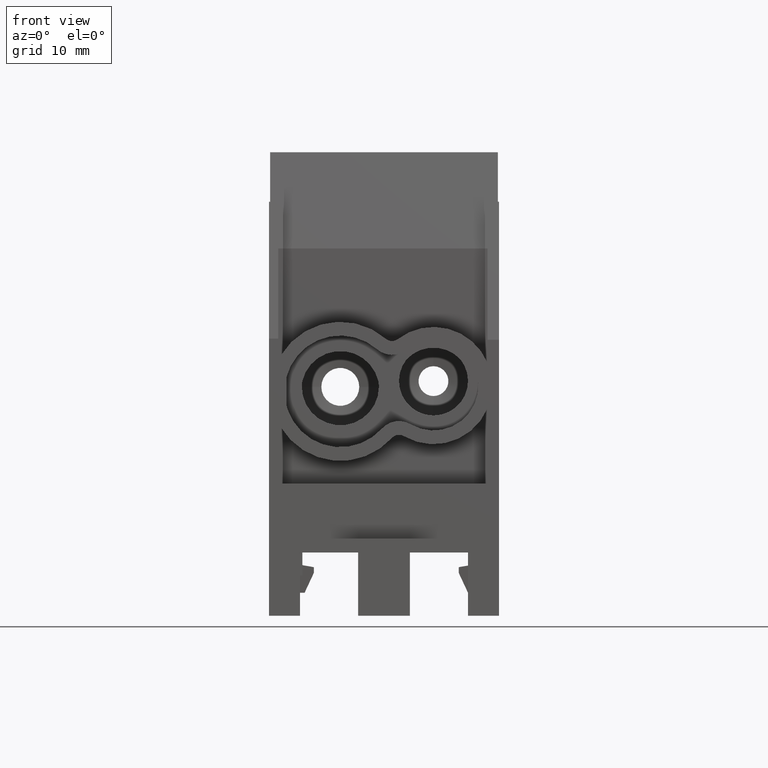
[diagram: clean part render]
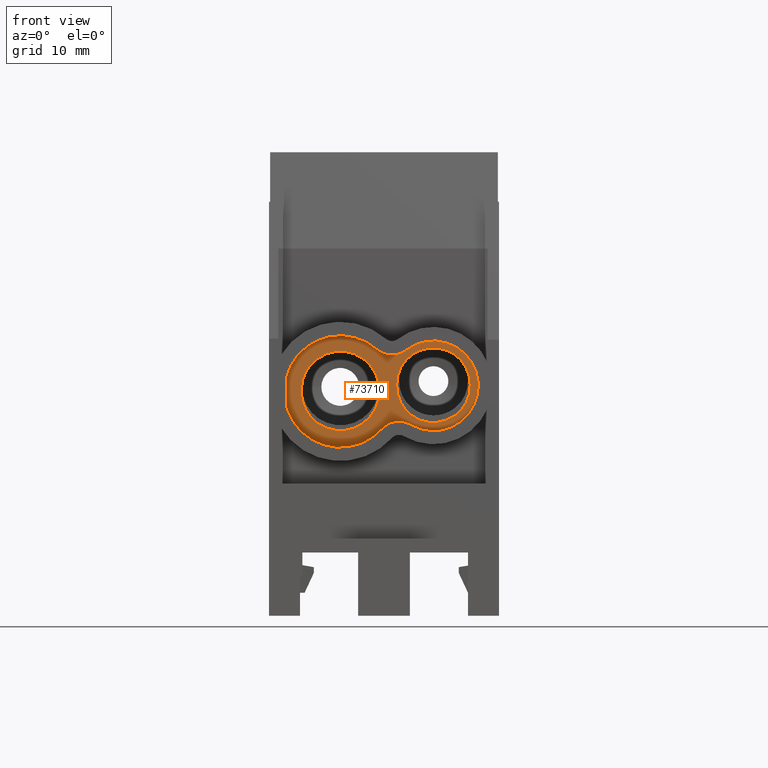
[diagram: same view with one face highlighted and labeled with its STEP entity id]
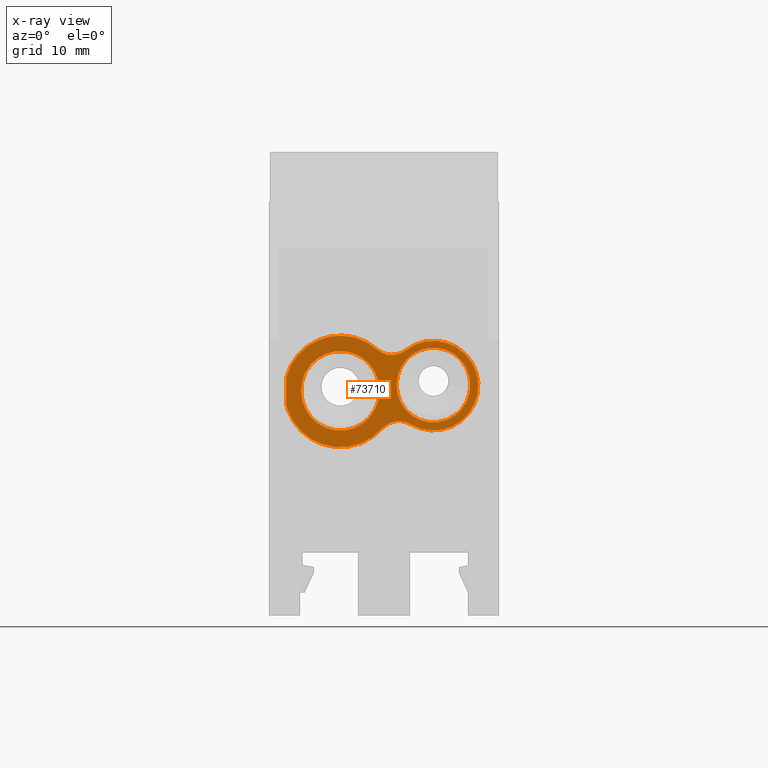
[diagram: x-ray of the same camera — body ghosted, the highlighted face saturated]
A machine part, front view. The second image highlights one B-rep face of the part: STEP entity #73710.
The next image is the same camera in x-ray: the body ghosted, the highlighted face saturated — about 0% of this face is hidden behind the body in this view.
In plain terms, the highlighted planar face has unit normal (0, 1, 0).
Its self-contained STEP definition (entity closure, byte-faithful):
#14240=CARTESIAN_POINT('',(9.9,17.15,-9.44535933870499));
#14250=DIRECTION('',(-3.24619032168768E-32,-1.,3.03396758775072E-16));
#14260=DIRECTION('',(-5.55111512312577E-17,-3.03396758775072E-16,-1.));
#14270=AXIS2_PLACEMENT_3D('',#14240,#14250,#14260);
#14280=PLANE('',#14270);
#36290=CARTESIAN_POINT('',(3.80000000000001,17.15,-21.745359338705));
#36300=DIRECTION('',(-2.77555756156289E-16,-1.,5.80952514931361E-16));
#36310=DIRECTION('',(5.55111512312577E-17,5.80952514931361E-16,1.));
#36320=AXIS2_PLACEMENT_3D('',#36290,#36300,#36310);
#36330=CIRCLE('',#36320,3.4);
#36340=CARTESIAN_POINT('',(0.400000000000007,17.15,-21.745359338705));
#36350=VERTEX_POINT('',#36340);
#36360=CARTESIAN_POINT('',(7.20000000000001,17.15,-21.745359338705));
#36370=VERTEX_POINT('',#36360);
#36380=EDGE_CURVE('',#36350,#36370,#36330,.T.);
#47840=CARTESIAN_POINT('',(-7.49843711834388,17.15,-21.145359338705));
#47850=VERTEX_POINT('',#47840);
#47880=CARTESIAN_POINT('',(-4.29999999999999,17.15,-21.245359338705));
#47890=DIRECTION('',(-2.77555756156289E-16,-1.,5.80952514931361E-16));
#47900=DIRECTION('',(5.55111512312577E-17,5.80952514931361E-16,1.));
#47910=AXIS2_PLACEMENT_3D('',#47880,#47890,#47900);
#47920=CIRCLE('',#47910,3.2);
#47930=CARTESIAN_POINT('',(-1.10156288165609,17.15,-21.145359338705));
#47940=VERTEX_POINT('',#47930);
#47950=EDGE_CURVE('',#47850,#47940,#47920,.T.);
#57750=CARTESIAN_POINT('',(-4.29999999999999,17.15,-21.145359338705));
#57760=DIRECTION('',(-2.77555756156289E-16,-1.,5.80952514931361E-16));
#57770=DIRECTION('',(5.55111512312577E-17,5.80952514931361E-16,1.));
#57780=AXIS2_PLACEMENT_3D('',#57750,#57760,#57770);
#57790=CIRCLE('',#57780,3.1984371183439);
#57800=EDGE_CURVE('',#47940,#47850,#57790,.T.);
#59310=CARTESIAN_POINT('',(7.20000000000001,17.15,8.60792001334447E-15))
;
#59320=DIRECTION('',(-5.55111512312577E-17,-3.03396758775072E-16,-1.));
#59330=VECTOR('',#59320,1.);
#59340=LINE('',#59310,#59330);
#59350=CARTESIAN_POINT('',(7.20000000000001,17.15,-21.645359338705));
#59360=VERTEX_POINT('',#59350);
#59370=EDGE_CURVE('',#59360,#36370,#59340,.T.);
#59730=CARTESIAN_POINT('',(3.80000000000001,17.15,-21.645359338705));
#59740=DIRECTION('',(-2.77555756156289E-16,-1.,5.80952514931361E-16));
#59750=DIRECTION('',(5.55111512312577E-17,5.80952514931361E-16,1.));
#59760=AXIS2_PLACEMENT_3D('',#59730,#59740,#59750);
#59770=CIRCLE('',#59760,3.4);
#59780=CARTESIAN_POINT('',(0.400000000000007,17.15,-21.645359338705));
#59790=VERTEX_POINT('',#59780);
#59800=EDGE_CURVE('',#59360,#59790,#59770,.T.);
#61740=CARTESIAN_POINT('',(0.400000000000008,17.15,8.98539584171702E-15)
);
#61750=DIRECTION('',(5.55111512312577E-17,3.03396758775072E-16,1.));
#61760=VECTOR('',#61750,1.);
#61770=LINE('',#61740,#61760);
#61780=EDGE_CURVE('',#36350,#59790,#61770,.T.);
#72970=CARTESIAN_POINT('',(8.50000000000001,17.15,-20.9896731686598));
#72980=DIRECTION('',(-5.55111512312577E-17,-4.42174636853216E-16,-1.));
#72990=VECTOR('',#72980,1.);
#73000=LINE('',#72970,#72990);
#73010=CARTESIAN_POINT('',(8.50000000000001,17.15,-20.5484884183464));
#73020=VERTEX_POINT('',#73010);
#73030=CARTESIAN_POINT('',(8.50000000000001,17.15,-22.6577737182497));
#73040=VERTEX_POINT('',#73030);
#73050=EDGE_CURVE('',#73020,#73040,#73000,.T.);
#73060=ORIENTED_EDGE('',*,*,#73050,.T.);
#73070=CARTESIAN_POINT('',(3.80000000000001,17.15,-21.745359338705));
#73080=DIRECTION('',(2.77555756156289E-16,1.,-5.80952514931361E-16));
#73090=DIRECTION('',(-3.60536343048376E-17,5.80952514931361E-16,1.));
#73100=AXIS2_PLACEMENT_3D('',#73070,#73080,#73090);
#73110=CIRCLE('',#73100,4.85);
#73120=CARTESIAN_POINT('',(0.6181197627682,17.15,-18.0850126125172));
#73130=VERTEX_POINT('',#73120);
#73140=EDGE_CURVE('',#73130,#73020,#73110,.T.);
#73150=ORIENTED_EDGE('',*,*,#73140,.T.);
#73160=CARTESIAN_POINT('',(-0.693995798976877,17.15,-16.5755912821305));
#73170=DIRECTION('',(2.77555756156289E-16,1.,-5.80952514931361E-16));
#73180=DIRECTION('',(-5.55111512312577E-17,-5.80952514931361E-16,-1.));
#73190=AXIS2_PLACEMENT_3D('',#73160,#73170,#73180);
#73200=CIRCLE('',#73190,2.);
#73210=CARTESIAN_POINT('',(-1.91637010440844,17.15,-18.1585635046981));
#73220=VERTEX_POINT('',#73210);
#73230=EDGE_CURVE('',#73130,#73220,#73200,.T.);
#73240=ORIENTED_EDGE('',*,*,#73230,.F.);
#73250=CARTESIAN_POINT('',(-4.29999999999999,17.15,-21.245359338705));
#73260=DIRECTION('',(2.77555756156289E-16,1.,-5.80952514931361E-16));
#73270=DIRECTION('',(-5.55111512312577E-17,-5.80952514931361E-16,-1.));
#73280=AXIS2_PLACEMENT_3D('',#73250,#73260,#73270);
#73290=CIRCLE('',#73280,3.9);
#73300=CARTESIAN_POINT('',(-2.31410562222277,17.15,-24.6018788932902));
#73310=VERTEX_POINT('',#73300);
#73320=EDGE_CURVE('',#73310,#73220,#73290,.T.);
#73330=ORIENTED_EDGE('',*,*,#73320,.T.);
#73340=CARTESIAN_POINT('',(-1.29569824900367,17.15,-26.3231709725646));
#73350=DIRECTION('',(2.77555756156289E-16,1.,-5.80952514931361E-16));
#73360=DIRECTION('',(-5.55111512312577E-17,-5.80952514931361E-16,-1.));
#73370=AXIS2_PLACEMENT_3D('',#73340,#73350,#73360);
#73380=CIRCLE('',#73370,2.);
#73390=CARTESIAN_POINT('',(0.192096860194477,17.15,-24.9865836342115));
#73400=VERTEX_POINT('',#73390);
#73410=EDGE_CURVE('',#73310,#73400,#73380,.T.);
#73420=ORIENTED_EDGE('',*,*,#73410,.F.);
#73430=CARTESIAN_POINT('',(3.80000000000001,17.15,-21.745359338705));
#73440=DIRECTION('',(-2.77555756156289E-16,-1.,5.80952514931361E-16));
#73450=DIRECTION('',(-1.47075936767353E-16,-5.80952514931361E-16,-1.));
#73460=AXIS2_PLACEMENT_3D('',#73430,#73440,#73450);
#73470=CIRCLE('',#73460,4.85);
#73480=CARTESIAN_POINT('',(8.39473684210527,17.15,-23.2980645109127));
#73490=VERTEX_POINT('',#73480);
#73500=EDGE_CURVE('',#73400,#73490,#73470,.T.);
#73510=ORIENTED_EDGE('',*,*,#73500,.F.);
#73520=CARTESIAN_POINT('',(6.50000000000001,17.15,-22.6577737182497));
#73530=DIRECTION('',(2.77555756156289E-16,1.,-5.80952514931361E-16));
#73540=DIRECTION('',(-5.55111512312577E-17,-5.80952514931361E-16,-1.));
#73550=AXIS2_PLACEMENT_3D('',#73520,#73530,#73540);
#73560=CIRCLE('',#73550,2.);
#73570=EDGE_CURVE('',#73040,#73490,#73560,.T.);
#73580=ORIENTED_EDGE('',*,*,#73570,.T.);
#73590=EDGE_LOOP('',(#73580,#73510,#73420,#73330,#73240,#73150,#73060));
#73600=FACE_OUTER_BOUND('',#73590,.T.);
#73610=ORIENTED_EDGE('',*,*,#57800,.T.);
#73620=ORIENTED_EDGE('',*,*,#47950,.T.);
#73630=EDGE_LOOP('',(#73620,#73610));
#73640=FACE_BOUND('',#73630,.T.);
#73650=ORIENTED_EDGE('',*,*,#59800,.T.);
#73660=ORIENTED_EDGE('',*,*,#59370,.F.);
#73670=ORIENTED_EDGE('',*,*,#36380,.T.);
#73680=ORIENTED_EDGE('',*,*,#61780,.F.);
#73690=EDGE_LOOP('',(#73680,#73670,#73660,#73650));
#73700=FACE_BOUND('',#73690,.T.);
#73710=ADVANCED_FACE('',(#73600,#73640,#73700),#14280,.F.);